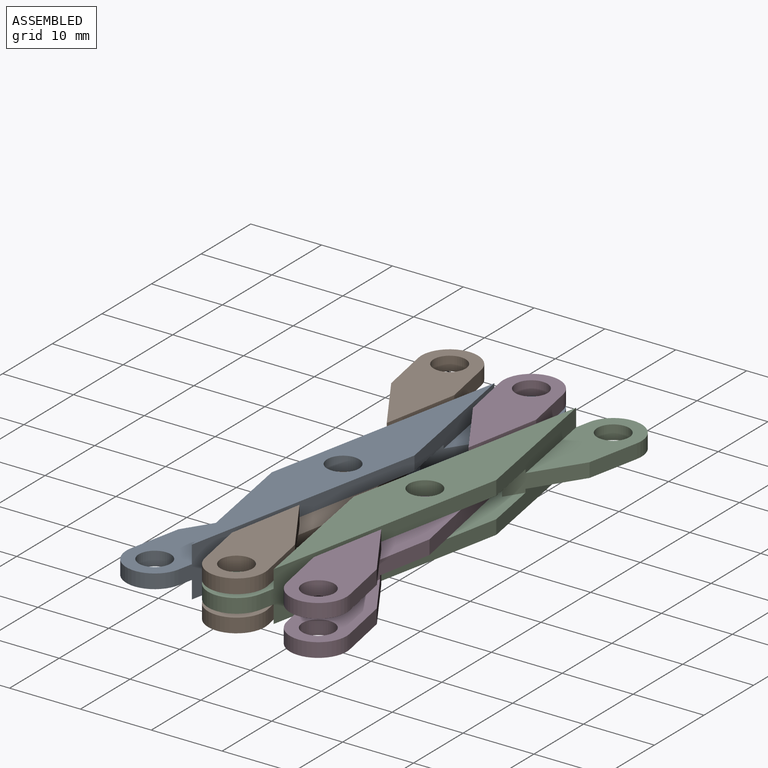
[diagram: assembled view]
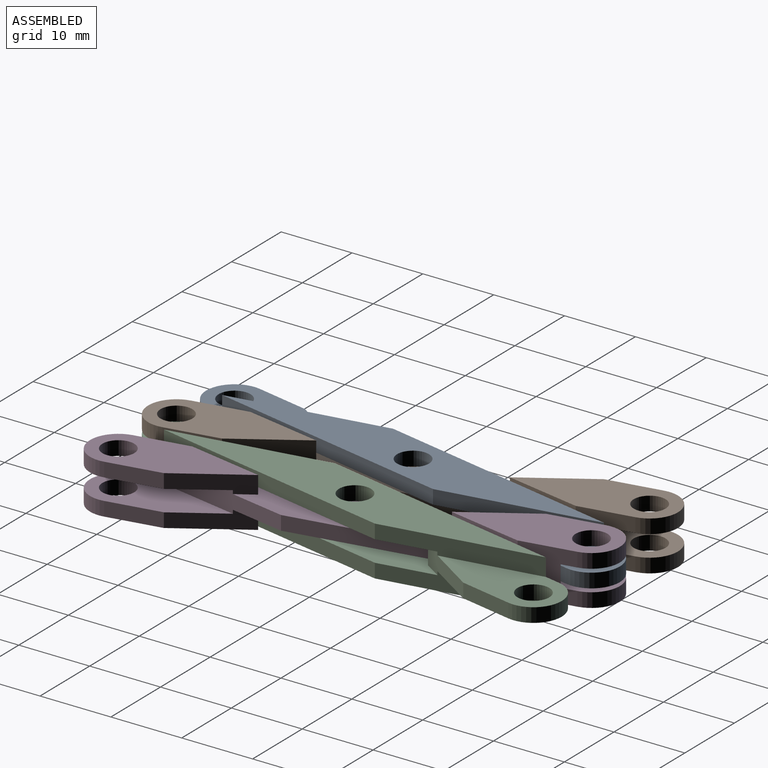
[diagram: assembled view, second angle]
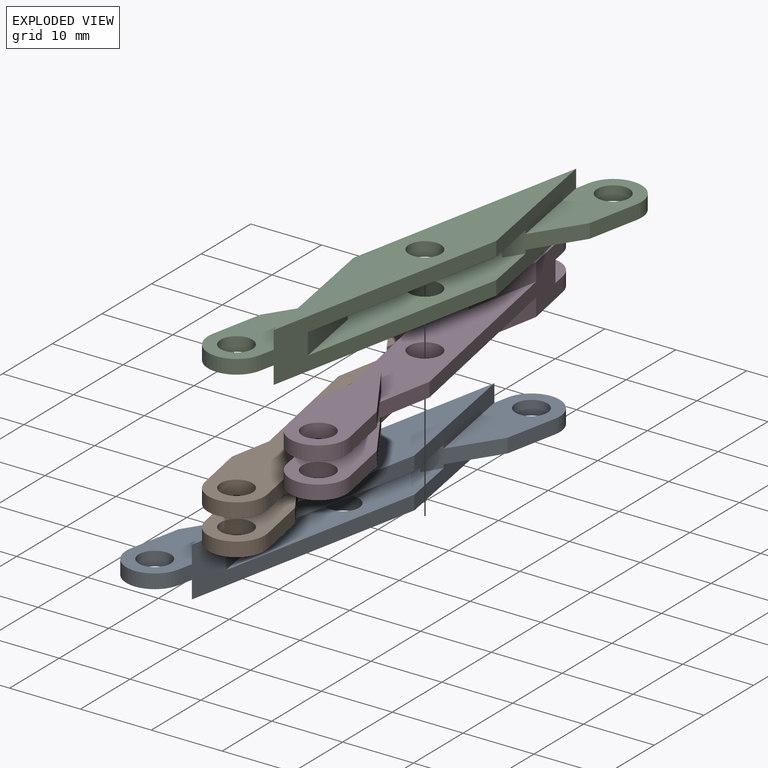
[diagram: exploded view]
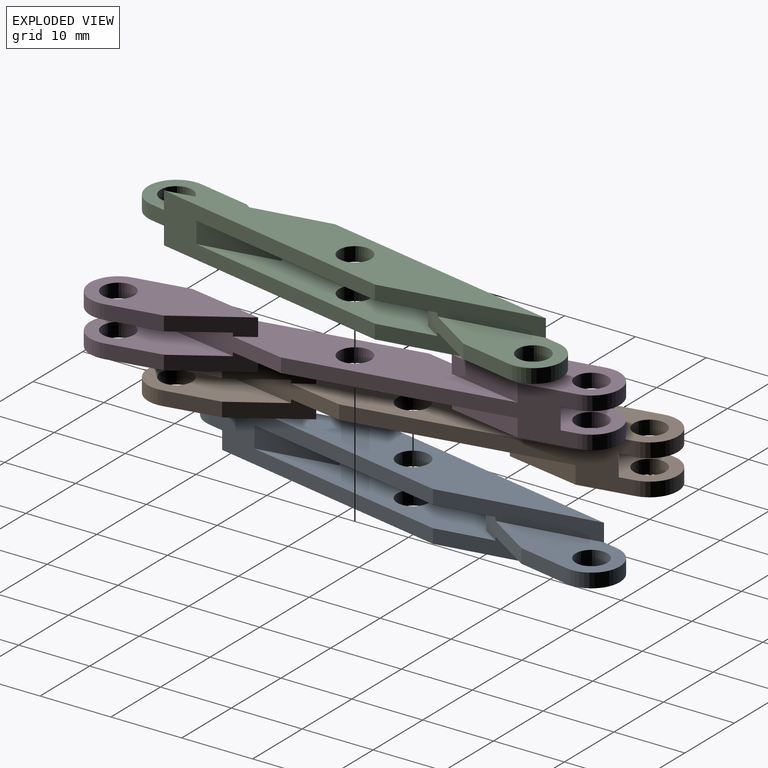
[diagram: exploded view, second angle]
ASSEMBLY  parts=4 mates=4
PART A: 26 faces, bbox 19.2x66.9x7 mm
  f0: plane 21.44x4.07mm, normal (-0.98,-0.19,0), area 50.6mm2, adj f5,f6,f9,f16,f21,f24
  f1: plane 21.44x4.07mm, normal (0.98,0.19,0), area 50.6mm2, adj f5,f6,f9,f11,f15,f24
  f2: cylinder r=2.25mm len=4.5mm, axis (0,0,-1), area 28.3mm2, adj f9,f24
  f3: plane 21.44x4.07mm, normal (-0.98,-0.19,0), area 50.6mm2, adj f5,f6,f8,f16,f20,f25
  f4: plane 21.44x4.07mm, normal (0.98,0.19,0), area 50.6mm2, adj f5,f6,f8,f11,f14,f25
  f5: plane 36.92x7.01mm, normal (0.98,-0.19,0), area 162.4mm2, adj f0,f1,f3,f4,f8,f9,f18,f20
  f6: plane 36.92x7.01mm, normal (-0.98,0.19,0), area 162.4mm2, adj f0,f1,f3,f4,f8,f9,f10,f14
  f7: cylinder r=2.25mm len=4.5mm, axis (0,0,-1), area 28.3mm2, adj f8,f25
  f8: plane 56.27x10.69mm, normal (0,0,1), area 267.7mm2, adj f3,f4,f5,f6,f7
  f9: plane 56.27x10.69mm, normal (0,0,-1), area 267.7mm2, adj f0,f1,f2,f5,f6
  f10: cylinder r=4mm len=7.93mm, axis (0,0,-1), area 25.1mm2, adj f6,f12,f14,f15
  f11: plane 9.22x5.82mm, normal (0.85,-0.53,0), area 24.7mm2, adj f1,f4,f12,f14,f15,f22,f24,f25
  f12: plane 7.45x2mm, normal (0.98,-0.19,0), area 15.2mm2, adj f10,f11,f14,f15
  f13: cylinder r=2.25mm len=4.5mm, axis (0,0,-1), area 28.3mm2, adj f14,f15
  f14: plane 18.94x8.33mm, normal (0,0,1), area 85.7mm2, adj f4,f6,f10,f11,f12,f13
  f15: plane 18.94x8.33mm, normal (0,0,-1), area 85.7mm2, adj f1,f6,f10,f11,f12,f13
  f16: plane 9.22x5.82mm, normal (-0.85,0.53,0), area 24.7mm2, adj f0,f3,f17,f20,f21,f23,f24,f25
  f17: plane 7.45x2mm, normal (-0.98,0.19,0), area 15.2mm2, adj f16,f18,f20,f21
  f18: cylinder r=4mm len=7.93mm, axis (0,0,-1), area 25.1mm2, adj f5,f17,f20,f21
  f19: cylinder r=2.25mm len=4.5mm, axis (0,0,-1), area 28.3mm2, adj f20,f21
  f20: plane 18.94x8.33mm, normal (0,0,1), area 85.7mm2, adj f3,f5,f16,f17,f18,f19
  f21: plane 18.94x8.33mm, normal (0,0,-1), area 85.7mm2, adj f0,f5,f16,f17,f18,f19
  f22: plane 10.72x3mm, normal (-0.98,-0.19,0), area 32.7mm2, adj f6,f11,f24,f25
  f23: plane 10.72x3mm, normal (0.98,0.19,0), area 32.7mm2, adj f5,f16,f24,f25
  f24: plane 45.55x10.69mm, normal (0,0,1), area 218.2mm2, adj f0,f1,f2,f5,f6,f11,f16,f22
  f25: plane 45.55x10.69mm, normal (0,0,-1), area 218.2mm2, adj f3,f4,f5,f6,f7,f11,f16,f22
PART B: 35 faces, bbox 19.2x66.9x7 mm
  f0: plane 36.92x7.01mm, normal (0.98,0.19,0), area 106.7mm2, adj f8,f12,f13,f15,f16,f17,f19,f20
  f1: plane 36.92x7.01mm, normal (-0.98,-0.19,0), area 106.7mm2, adj f10,f12,f13,f15,f16,f24,f26,f27
  f2: plane 7.45x2mm, normal (-0.98,-0.19,0), area 15.2mm2, adj f3,f8,f23,f34
  f3: plane 9.22x5.82mm, normal (-0.85,-0.53,0), area 23.3mm2, adj f2,f12,f16,f17,f23,f34
  f4: plane 9.22x5.82mm, normal (-0.85,-0.53,0), area 23.3mm2, adj f12,f15,f18,f19,f22,f33
  f5: plane 7.45x2mm, normal (0.98,0.19,0), area 15.2mm2, adj f6,f10,f30,f32
  f6: plane 9.22x5.82mm, normal (0.85,0.53,0), area 23.3mm2, adj f5,f13,f16,f24,f30,f32
  f7: plane 9.22x5.82mm, normal (0.85,0.53,0), area 23.3mm2, adj f13,f15,f25,f26,f29,f31
  f8: cylinder r=4mm len=7.93mm, axis (0,0,-1), area 25.1mm2, adj f0,f2,f23,f34
  f9: cylinder r=2.25mm len=4.5mm, axis (0,0,-1), area 28.3mm2, adj f23,f34
  f10: cylinder r=4mm len=7.93mm, axis (0,0,-1), area 25.1mm2, adj f1,f5,f30,f32
  f11: cylinder r=2.25mm len=4.5mm, axis (0,0,-1), area 28.3mm2, adj f30,f32
  f12: plane 21.44x4.07mm, normal (-0.98,0.19,0), area 57.5mm2, adj f0,f1,f3,f4,f15,f16,f33,f34
  f13: plane 21.44x4.07mm, normal (0.98,-0.19,0), area 57.5mm2, adj f0,f1,f6,f7,f15,f16,f31,f32
  f14: cylinder r=2.25mm len=4.5mm, axis (0,0,-1), area 28.3mm2, adj f15,f16
  f15: plane 45.55x10.69mm, normal (0,0,1), area 218.2mm2, adj f0,f1,f4,f7,f12,f13,f14,f19
  f16: plane 45.55x10.69mm, normal (0,0,-1), area 218.2mm2, adj f0,f1,f3,f6,f12,f13,f14,f17
  f17: plane 10.72x2.5mm, normal (0.98,-0.19,0), area 27.3mm2, adj f0,f3,f16,f23
  f18: plane 7.45x2mm, normal (-0.98,-0.19,0), area 15.2mm2, adj f4,f20,f22,f33
  f19: plane 10.72x2.5mm, normal (0.98,-0.19,0), area 27.3mm2, adj f0,f4,f15,f22
  f20: cylinder r=4mm len=7.93mm, axis (0,0,-1), area 25.1mm2, adj f0,f18,f22,f33
  f21: cylinder r=2.25mm len=4.5mm, axis (0,0,-1), area 28.3mm2, adj f22,f33
  f22: plane 21.42x9.34mm, normal (0,0,1), area 110.4mm2, adj f0,f4,f18,f19,f20,f21
  f23: plane 21.42x9.34mm, normal (0,0,-1), area 110.4mm2, adj f0,f2,f3,f8,f9,f17
  f24: plane 10.72x2.5mm, normal (-0.98,0.19,0), area 27.3mm2, adj f1,f6,f16,f30
  f25: plane 7.45x2mm, normal (0.98,0.19,0), area 15.2mm2, adj f7,f27,f29,f31
  f26: plane 10.72x2.5mm, normal (-0.98,0.19,0), area 27.3mm2, adj f1,f7,f15,f29
  f27: cylinder r=4mm len=7.93mm, axis (0,0,-1), area 25.1mm2, adj f1,f25,f29,f31
  f28: cylinder r=2.25mm len=4.5mm, axis (0,0,-1), area 28.3mm2, adj f29,f31
  f29: plane 21.42x9.34mm, normal (0,0,1), area 110.4mm2, adj f1,f7,f25,f26,f27,f28
  f30: plane 21.42x9.34mm, normal (0,0,-1), area 110.4mm2, adj f1,f5,f6,f10,f11,f24
  f31: plane 18.94x8.33mm, normal (0,0,-1), area 85.7mm2, adj f1,f7,f13,f25,f27,f28
  f32: plane 18.94x8.33mm, normal (0,0,1), area 85.7mm2, adj f1,f5,f6,f10,f11,f13
  f33: plane 18.94x8.33mm, normal (0,0,-1), area 85.7mm2, adj f0,f4,f12,f18,f20,f21
  f34: plane 18.94x8.33mm, normal (0,0,1), area 85.7mm2, adj f0,f2,f3,f8,f9,f12
PART C: 26 faces, bbox 19.2x66.9x7 mm
  f0: plane 21.44x4.07mm, normal (-0.98,-0.19,0), area 50.6mm2, adj f5,f6,f9,f16,f21,f24
  f1: plane 21.44x4.07mm, normal (0.98,0.19,0), area 50.6mm2, adj f5,f6,f9,f11,f15,f24
  f2: cylinder r=2.25mm len=4.5mm, axis (0,0,-1), area 28.3mm2, adj f9,f24
  f3: plane 21.44x4.07mm, normal (-0.98,-0.19,0), area 50.6mm2, adj f5,f6,f8,f16,f20,f25
  f4: plane 21.44x4.07mm, normal (0.98,0.19,0), area 50.6mm2, adj f5,f6,f8,f11,f14,f25
  f5: plane 36.92x7.01mm, normal (0.98,-0.19,0), area 162.4mm2, adj f0,f1,f3,f4,f8,f9,f18,f20
  f6: plane 36.92x7.01mm, normal (-0.98,0.19,0), area 162.4mm2, adj f0,f1,f3,f4,f8,f9,f10,f14
  f7: cylinder r=2.25mm len=4.5mm, axis (0,0,-1), area 28.3mm2, adj f8,f25
  f8: plane 56.27x10.69mm, normal (0,0,1), area 267.7mm2, adj f3,f4,f5,f6,f7
  f9: plane 56.27x10.69mm, normal (0,0,-1), area 267.7mm2, adj f0,f1,f2,f5,f6
  f10: cylinder r=4mm len=7.93mm, axis (0,0,-1), area 25.1mm2, adj f6,f12,f14,f15
  f11: plane 9.22x5.82mm, normal (0.85,-0.53,0), area 24.7mm2, adj f1,f4,f12,f14,f15,f22,f24,f25
  f12: plane 7.45x2mm, normal (0.98,-0.19,0), area 15.2mm2, adj f10,f11,f14,f15
  f13: cylinder r=2.25mm len=4.5mm, axis (0,0,-1), area 28.3mm2, adj f14,f15
  f14: plane 18.94x8.33mm, normal (0,0,1), area 85.7mm2, adj f4,f6,f10,f11,f12,f13
  f15: plane 18.94x8.33mm, normal (0,0,-1), area 85.7mm2, adj f1,f6,f10,f11,f12,f13
  f16: plane 9.22x5.82mm, normal (-0.85,0.53,0), area 24.7mm2, adj f0,f3,f17,f20,f21,f23,f24,f25
  f17: plane 7.45x2mm, normal (-0.98,0.19,0), area 15.2mm2, adj f16,f18,f20,f21
  f18: cylinder r=4mm len=7.93mm, axis (0,0,-1), area 25.1mm2, adj f5,f17,f20,f21
  f19: cylinder r=2.25mm len=4.5mm, axis (0,0,-1), area 28.3mm2, adj f20,f21
  f20: plane 18.94x8.33mm, normal (0,0,1), area 85.7mm2, adj f3,f5,f16,f17,f18,f19
  f21: plane 18.94x8.33mm, normal (0,0,-1), area 85.7mm2, adj f0,f5,f16,f17,f18,f19
  f22: plane 10.72x3mm, normal (-0.98,-0.19,0), area 32.7mm2, adj f6,f11,f24,f25
  f23: plane 10.72x3mm, normal (0.98,0.19,0), area 32.7mm2, adj f5,f16,f24,f25
  f24: plane 45.55x10.69mm, normal (0,0,1), area 218.2mm2, adj f0,f1,f2,f5,f6,f11,f16,f22
  f25: plane 45.55x10.69mm, normal (0,0,-1), area 218.2mm2, adj f3,f4,f5,f6,f7,f11,f16,f22
PART D: 35 faces, bbox 19.2x66.9x7 mm
  f0: plane 36.92x7.01mm, normal (0.98,0.19,0), area 106.7mm2, adj f8,f12,f13,f15,f16,f17,f19,f20
  f1: plane 36.92x7.01mm, normal (-0.98,-0.19,0), area 106.7mm2, adj f10,f12,f13,f15,f16,f24,f26,f27
  f2: plane 7.45x2mm, normal (-0.98,-0.19,0), area 15.2mm2, adj f3,f8,f23,f34
  f3: plane 9.22x5.82mm, normal (-0.85,-0.53,0), area 23.3mm2, adj f2,f12,f16,f17,f23,f34
  f4: plane 9.22x5.82mm, normal (-0.85,-0.53,0), area 23.3mm2, adj f12,f15,f18,f19,f22,f33
  f5: plane 7.45x2mm, normal (0.98,0.19,0), area 15.2mm2, adj f6,f10,f30,f32
  f6: plane 9.22x5.82mm, normal (0.85,0.53,0), area 23.3mm2, adj f5,f13,f16,f24,f30,f32
  f7: plane 9.22x5.82mm, normal (0.85,0.53,0), area 23.3mm2, adj f13,f15,f25,f26,f29,f31
  f8: cylinder r=4mm len=7.93mm, axis (0,0,-1), area 25.1mm2, adj f0,f2,f23,f34
  f9: cylinder r=2.25mm len=4.5mm, axis (0,0,-1), area 28.3mm2, adj f23,f34
  f10: cylinder r=4mm len=7.93mm, axis (0,0,-1), area 25.1mm2, adj f1,f5,f30,f32
  f11: cylinder r=2.25mm len=4.5mm, axis (0,0,-1), area 28.3mm2, adj f30,f32
  f12: plane 21.44x4.07mm, normal (-0.98,0.19,0), area 57.5mm2, adj f0,f1,f3,f4,f15,f16,f33,f34
  f13: plane 21.44x4.07mm, normal (0.98,-0.19,0), area 57.5mm2, adj f0,f1,f6,f7,f15,f16,f31,f32
  f14: cylinder r=2.25mm len=4.5mm, axis (0,0,-1), area 28.3mm2, adj f15,f16
  f15: plane 45.55x10.69mm, normal (0,0,1), area 218.2mm2, adj f0,f1,f4,f7,f12,f13,f14,f19
  f16: plane 45.55x10.69mm, normal (0,0,-1), area 218.2mm2, adj f0,f1,f3,f6,f12,f13,f14,f17
  f17: plane 10.72x2.5mm, normal (0.98,-0.19,0), area 27.3mm2, adj f0,f3,f16,f23
  f18: plane 7.45x2mm, normal (-0.98,-0.19,0), area 15.2mm2, adj f4,f20,f22,f33
  f19: plane 10.72x2.5mm, normal (0.98,-0.19,0), area 27.3mm2, adj f0,f4,f15,f22
  f20: cylinder r=4mm len=7.93mm, axis (0,0,-1), area 25.1mm2, adj f0,f18,f22,f33
  f21: cylinder r=2.25mm len=4.5mm, axis (0,0,-1), area 28.3mm2, adj f22,f33
  f22: plane 21.42x9.34mm, normal (0,0,1), area 110.4mm2, adj f0,f4,f18,f19,f20,f21
  f23: plane 21.42x9.34mm, normal (0,0,-1), area 110.4mm2, adj f0,f2,f3,f8,f9,f17
  f24: plane 10.72x2.5mm, normal (-0.98,0.19,0), area 27.3mm2, adj f1,f6,f16,f30
  f25: plane 7.45x2mm, normal (0.98,0.19,0), area 15.2mm2, adj f7,f27,f29,f31
  f26: plane 10.72x2.5mm, normal (-0.98,0.19,0), area 27.3mm2, adj f1,f7,f15,f29
  f27: cylinder r=4mm len=7.93mm, axis (0,0,-1), area 25.1mm2, adj f1,f25,f29,f31
  f28: cylinder r=2.25mm len=4.5mm, axis (0,0,-1), area 28.3mm2, adj f29,f31
  f29: plane 21.42x9.34mm, normal (0,0,1), area 110.4mm2, adj f1,f7,f25,f26,f27,f28
  f30: plane 21.42x9.34mm, normal (0,0,-1), area 110.4mm2, adj f1,f5,f6,f10,f11,f24
  f31: plane 18.94x8.33mm, normal (0,0,-1), area 85.7mm2, adj f1,f7,f13,f25,f27,f28
  f32: plane 18.94x8.33mm, normal (0,0,1), area 85.7mm2, adj f1,f5,f6,f10,f11,f13
  f33: plane 18.94x8.33mm, normal (0,0,-1), area 85.7mm2, adj f0,f4,f12,f18,f20,f21
  f34: plane 18.94x8.33mm, normal (0,0,1), area 85.7mm2, adj f0,f2,f3,f8,f9,f12
PLACE A rot(axis=(0,0,-1),0.8deg) t=(-2.62,-2.04,3.55)mm
PLACE B t=(-2.61,-1.89,3.55)mm
PLACE C rot(axis=(0,0,-1),0.8deg) t=(-2.01,-1.97,3.55)mm
PLACE D t=(-2.01,-1.97,3.55)mm fixed
MATE revolute D.f8 <-> A.f10  axis (0,0,1) through (-7.61,27.5,2.05)mm
MATE revolute D.f14 <-> C.f2  axis (0,0,1) through (-2.01,-1.97,4.55)mm
MATE revolute B.f14 <-> A.f2  axis (0,0,1) through (-13.61,-1.89,4.55)mm
MATE revolute C.f18 <-> B.f10  axis (0,0,1) through (-8.02,-31.36,4.55)mm
